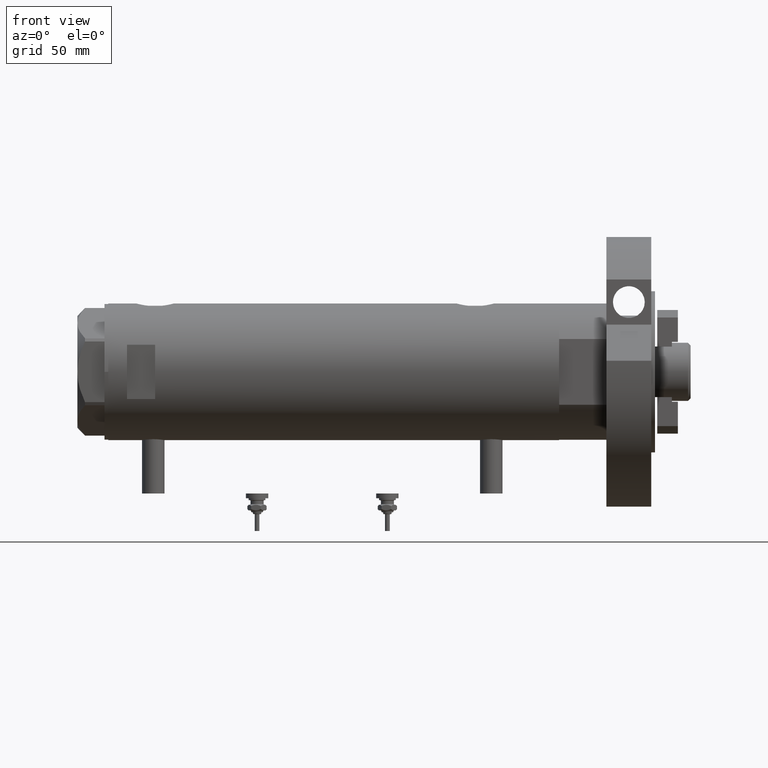
[diagram: clean part render]
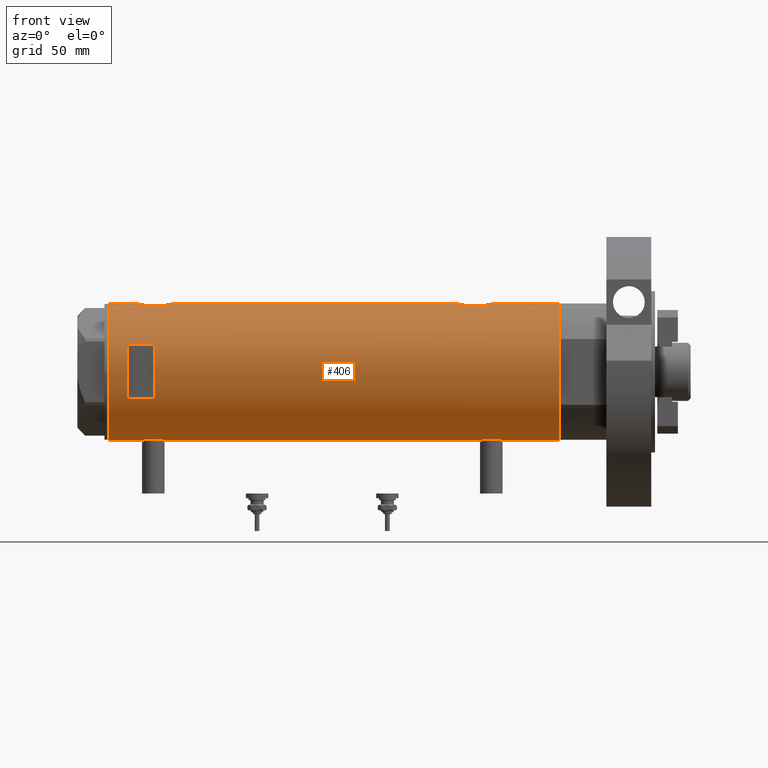
[diagram: same view with one face highlighted and labeled with its STEP entity id]
A machine part, front view. The second image highlights one B-rep face of the part: STEP entity #406.
In plain terms, the highlighted cylindrical surface (partial cylindrical patch) has radius 36.5 mm, axis along (-1, -0, 0).
Its self-contained STEP definition (entity closure, byte-faithful):
#42 = CARTESIAN_POINT ( 'NONE',  ( 14.49137674618942739, -33.50000000000000000, 95.40000000000000568 ) ) ;
#64 = EDGE_CURVE ( 'NONE', #934, #6908, #1511, .T. ) ;
#100 = CARTESIAN_POINT ( 'NONE',  ( 35.93373217836897737, -6.415110096330620237, -67.91295733644906818 ) ) ;
#111 = CARTESIAN_POINT ( 'NONE',  ( -36.50000000000000000, 1.603939656238031057E-15, -77.85000000000000853 ) ) ;
#124 = CARTESIAN_POINT ( 'NONE',  ( -36.16096637594732499, -4.968588355849258953, 92.58665507182242038 ) ) ;
#139 = ORIENTED_EDGE ( 'NONE', *, *, #6978, .F. ) ;
#144 = CARTESIAN_POINT ( 'NONE',  ( 36.00092304812866217, -6.029438422680412302, 103.3930815557365008 ) ) ;
#147 = CARTESIAN_POINT ( 'NONE',  ( 36.41918031349423757, -2.473644131148923009, -65.89811654536809726 ) ) ;
#168 = CARTESIAN_POINT ( 'NONE',  ( -36.50000000000000000, 4.469960493350315609E-15, 90.15000000000000568 ) ) ;
#218 = EDGE_CURVE ( 'NONE', #5137, #5610, #293, .T. ) ;
#238 = AXIS2_PLACEMENT_3D ( 'NONE', #5027, #5702, #5581 ) ;
#246 = CARTESIAN_POINT ( 'NONE',  ( -36.40915499150419521, -2.580495338846545472, -89.79605013355480025 ) ) ;
#275 = CIRCLE ( 'NONE', #5913, 36.50000000000000000 ) ;
#284 = CARTESIAN_POINT ( 'NONE',  ( -36.36656776002988778, -3.137002187003158582, 101.8213640927363457 ) ) ;
#288 = CARTESIAN_POINT ( 'NONE',  ( -36.36635911126388265, -3.125815113635437292, -89.51605600407906138 ) ) ;
#293 = B_SPLINE_CURVE_WITH_KNOTS ( 'NONE', 3,
 ( #5475, #4172, #1635, #7321, #3459, #840, #4208, #998, #6731, #3574, #382, #7364, #1559, #2860, #4682, #7915, #7237, #1476 ),
 .UNSPECIFIED., .F., .F.,
 ( 4, 2, 2, 2, 2, 2, 2, 2, 4 ),
 ( -0.01189883390545606531, -0.008924125429092034240, -0.008180448310001031675, -0.007436771190910029979, -0.005949416952728023983, -0.004462062714546017987, -0.002974708476364010257, -0.001487354238182005128, 1.734723475976807094E-18 ),
 .UNSPECIFIED. ) ;
#302 = CARTESIAN_POINT ( 'NONE',  ( 36.48960339336947101, -1.002724032967601708, 85.43775134026506635 ) ) ;
#316 = VECTOR ( 'NONE', #3165, 1000.000000000000000 ) ;
#319 = B_SPLINE_CURVE_WITH_KNOTS ( 'NONE', 3,
 ( #3288, #7076, #1308, #3888, #147, #5858, #3929, #6452, #1895, #2069, #3249, #5815, #100, #7198, #5105, #2612, #5186, #769 ),
 .UNSPECIFIED., .F., .F.,
 ( 4, 2, 2, 2, 2, 2, 2, 2, 4 ),
 ( 0.01190956515753145012, 0.01339852714138290227, 0.01488748912523435441, 0.01637645110908580656, 0.01712093210101153090, 0.01786541309293725871, 0.01935437507678870739, 0.02084333706064015260, 0.02382126102834301526 ),
 .UNSPECIFIED. ) ;
#322 = CARTESIAN_POINT ( 'NONE',  ( 35.29999999999999716, -9.282241108697837362, 91.67978495245237980 ) ) ;
#382 = CARTESIAN_POINT ( 'NONE',  ( 36.18850502651835654, -4.779575967213809840, -84.39779152890152147 ) ) ;
#406 = ADVANCED_FACE ( 'NONE', ( #5765, #5220 ), #2561, .T. ) ;
#418 = VERTEX_POINT ( 'NONE', #42 ) ;
#489 = B_SPLINE_CURVE_WITH_KNOTS ( 'NONE', 3,
 ( #5351, #2954, #7918, #4764, #1044, #7997, #3534, #4211, #7406, #3576, #6066, #5393, #4256, #2782, #4802, #302, #6812, #6769 ),
 .UNSPECIFIED., .F., .F.,
 ( 4, 2, 2, 2, 2, 2, 2, 2, 4 ),
 ( -0.01189883390545606531, -0.008924125429092034240, -0.008180448310001031675, -0.007436771190910029979, -0.005949416952728023983, -0.004462062714546017987, -0.002974708476364010257, -0.001487354238182005128, 1.734723475976807094E-18 ),
 .UNSPECIFIED. ) ;
#492 = CARTESIAN_POINT ( 'NONE',  ( -36.50000000000001421, -0.4136690418839317762, -77.85000000000002274 ) ) ;
#529 = EDGE_LOOP ( 'NONE', ( #3475, #2744, #6774, #1427, #5632, #742, #887, #3675, #1001, #2550, #3901, #4470, #554, #3803, #2032, #139 ) ) ;
#538 = CARTESIAN_POINT ( 'NONE',  ( -36.49297138689434661, -0.8222528563518530786, -77.89066887946569295 ) ) ;
#541 = DIRECTION ( 'NONE',  ( 0.000000000000000000, 0.000000000000000000, 1.000000000000000000 ) ) ;
#554 = ORIENTED_EDGE ( 'NONE', *, *, #3340, .F. ) ;
#576 = CARTESIAN_POINT ( 'NONE',  ( -36.16125812922425098, -4.962923794285024393, -80.29553914089240152 ) ) ;
#588 = CARTESIAN_POINT ( 'NONE',  ( -36.49315367594273596, -0.8144497809045447845, 90.18960214445247914 ) ) ;
#614 = LINE ( 'NONE', #3178, #3061 ) ;
#631 = CARTESIAN_POINT ( 'NONE',  ( -36.26692673949090562, -4.128477002029503851, 91.69000012567835256 ) ) ;
#633 = CARTESIAN_POINT ( 'NONE',  ( -36.50000000000000000, 4.469960493350315609E-15, -90.35000000000000853 ) ) ;
#670 = EDGE_CURVE ( 'NONE', #5821, #5610, #8108, .T. ) ;
#742 = ORIENTED_EDGE ( 'NONE', *, *, #6025, .F. ) ;
#744 = ORIENTED_EDGE ( 'NONE', *, *, #6786, .F. ) ;
#769 = CARTESIAN_POINT ( 'NONE',  ( 35.29999999999999716, -9.282241108697837362, -71.87978495245236843 ) ) ;
#840 = CARTESIAN_POINT ( 'NONE',  ( 35.79656810172926384, -7.133411935499478496, -82.61254878557676307 ) ) ;
#863 = CARTESIAN_POINT ( 'NONE',  ( -36.06543684817881257, -5.617774235967367247, 99.16954447971704667 ) ) ;
#870 = CARTESIAN_POINT ( 'NONE',  ( 0.000000000000000000, 0.000000000000000000, 110.3999999999999915 ) ) ;
#887 = ORIENTED_EDGE ( 'NONE', *, *, #7047, .T. ) ;
#900 = DIRECTION ( 'NONE',  ( 0.000000000000000000, 0.000000000000000000, 1.000000000000000000 ) ) ;
#907 = CARTESIAN_POINT ( 'NONE',  ( -36.35061318816141096, -3.303361544904982239, -89.40964041943020391 ) ) ;
#934 = VERTEX_POINT ( 'NONE', #3547 ) ;
#954 = CARTESIAN_POINT ( 'NONE',  ( -14.49137674618942739, -33.50000000000000000, 95.40000000000000568 ) ) ;
#998 = CARTESIAN_POINT ( 'NONE',  ( 35.93363298843768661, -6.415574104180976178, -83.28651472888894602 ) ) ;
#1001 = ORIENTED_EDGE ( 'NONE', *, *, #4521, .T. ) ;
#1006 = CARTESIAN_POINT ( 'NONE',  ( 0.000000000000000000, 0.000000000000000000, -120.4000000000000057 ) ) ;
#1027 = EDGE_CURVE ( 'NONE', #5137, #8268, #3839, .T. ) ;
#1044 = CARTESIAN_POINT ( 'NONE',  ( 35.72742963626381396, -7.471989379615407323, 88.74937739587225849 ) ) ;
#1110 = CARTESIAN_POINT ( 'NONE',  ( -35.96087392089862789, -6.250243747806517369, -83.69082509223819955 ) ) ;
#1137 = CARTESIAN_POINT ( 'NONE',  ( -36.50000000000000000, 4.469960816887838430E-15, -120.4000000000000057 ) ) ;
#1154 = CARTESIAN_POINT ( 'NONE',  ( -36.01639592019625979, -5.922235714778421034, -82.09203197573087607 ) ) ;
#1168 = CARTESIAN_POINT ( 'NONE',  ( -35.98821803976956346, -6.090959022952117330, 97.81573883149417270 ) ) ;
#1193 = CARTESIAN_POINT ( 'NONE',  ( 36.50000000000000000, 0.000000000000000000, -85.59999999999999432 ) ) ;
#1262 = CARTESIAN_POINT ( 'NONE',  ( 35.39807338191549491, -8.909271871950329214, 100.0508038273278544 ) ) ;
#1308 = CARTESIAN_POINT ( 'NONE',  ( 36.48988302519020266, -0.9927202255321166957, -65.63673010588698276 ) ) ;
#1371 = EDGE_CURVE ( 'NONE', #5407, #6496, #489, .T. ) ;
#1373 = DIRECTION ( 'NONE',  ( 1.000000000000000000, 0.000000000000000000, 0.000000000000000000 ) ) ;
#1387 = CARTESIAN_POINT ( 'NONE',  ( 36.50000000000000000, 4.344614706140975428E-19, 105.4000000000000057 ) ) ;
#1412 = CARTESIAN_POINT ( 'NONE',  ( -35.98855750525641639, -6.088954600884530777, 94.97569773849834007 ) ) ;
#1427 = ORIENTED_EDGE ( 'NONE', *, *, #218, .F. ) ;
#1459 = CARTESIAN_POINT ( 'NONE',  ( -36.44621655743049615, -2.016281777336074832, 90.47017023300885796 ) ) ;
#1476 = CARTESIAN_POINT ( 'NONE',  ( 36.50000000000000000, 0.000000000000000000, -85.59999999999999432 ) ) ;
#1511 = B_SPLINE_CURVE_WITH_KNOTS ( 'NONE', 3,
 ( #1387, #7115, #2652, #7874, #7700, #4008, #5899, #5811, #5775, #7022, #2609, #144, #7156, #7746, #3966, #7831, #1262, #5269 ),
 .UNSPECIFIED., .F., .F.,
 ( 4, 2, 2, 2, 2, 2, 2, 2, 4 ),
 ( 0.01190956515753145012, 0.01339852714138290227, 0.01488748912523435441, 0.01637645110908580656, 0.01712093210101153090, 0.01786541309293725871, 0.01935437507678870739, 0.02084333706064015260, 0.02382126102834301526 ),
 .UNSPECIFIED. ) ;
#1522 = VECTOR ( 'NONE', #6640, 1000.000000000000000 ) ;
#1550 = VECTOR ( 'NONE', #4292, 1000.000000000000000 ) ;
#1559 = CARTESIAN_POINT ( 'NONE',  ( 36.34184199234172041, -3.427106516421255744, -85.00740913680034794 ) ) ;
#1560 = CARTESIAN_POINT ( 'NONE',  ( 35.29999999999999716, -9.282241108697837362, -79.32021504754763441 ) ) ;
#1595 = VERTEX_POINT ( 'NONE', #633 ) ;
#1623 = CARTESIAN_POINT ( 'NONE',  ( 35.29999999999999716, -9.282241108697837362, 99.12021504754764578 ) ) ;
#1635 = CARTESIAN_POINT ( 'NONE',  ( 35.52320828895289395, -8.411622242316134646, -81.09772865944610487 ) ) ;
#1656 = CARTESIAN_POINT ( 'NONE',  ( -36.09514898390870030, -5.426114745500164815, 99.52838652946141451 ) ) ;
#1706 = CARTESIAN_POINT ( 'NONE',  ( -36.49315367594273596, -0.8144497809045447845, -90.31039785554752086 ) ) ;
#1725 = DIRECTION ( 'NONE',  ( 0.000000000000000000, 0.000000000000000000, 1.000000000000000000 ) ) ;
#1745 = EDGE_CURVE ( 'NONE', #934, #5436, #4081, .T. ) ;
#1747 = DIRECTION ( 'NONE',  ( 1.776356839400250465E-15, 1.000000000000000000, 4.562560375171875891E-15 ) ) ;
#1748 = CARTESIAN_POINT ( 'NONE',  ( -36.43335814606993495, -2.212659578761325463, -78.25123600830491455 ) ) ;
#1763 = VERTEX_POINT ( 'NONE', #2224 ) ;
#1781 = CARTESIAN_POINT ( 'NONE',  ( -35.96816095843705341, -6.208699946936198977, -84.92496377127787355 ) ) ;
#1824 = CARTESIAN_POINT ( 'NONE',  ( -36.19599073318030236, -4.702920041824403263, -79.97846168323422944 ) ) ;
#1865 = LINE ( 'NONE', #3596, #8285 ) ;
#1895 = CARTESIAN_POINT ( 'NONE',  ( 36.18674680775578167, -4.776679548204626258, -66.81107683068754000 ) ) ;
#1909 = CARTESIAN_POINT ( 'NONE',  ( -35.96095902952617251, -6.249754054240900913, -84.51658765420468455 ) ) ;
#2032 = ORIENTED_EDGE ( 'NONE', *, *, #4258, .F. ) ;
#2045 = CARTESIAN_POINT ( 'NONE',  ( -36.09582946723050867, -5.421573071064194060, 93.26391721629518372 ) ) ;
#2069 = CARTESIAN_POINT ( 'NONE',  ( 36.12724769814495573, -5.207618053557754756, -67.05935879511537223 ) ) ;
#2087 = VERTEX_POINT ( 'NONE', #2590 ) ;
#2090 = CARTESIAN_POINT ( 'NONE',  ( -36.01675918113430441, -5.920026275461277798, 94.38560443482110429 ) ) ;
#2224 = CARTESIAN_POINT ( 'NONE',  ( 36.50000000000000000, 4.344614706140975428E-19, -65.60000000000000853 ) ) ;
#2250 = CARTESIAN_POINT ( 'NONE',  ( -36.49297138689434661, -0.8222528563518530786, 102.6093311205343923 ) ) ;
#2278 = LINE ( 'NONE', #1137, #3473 ) ;
#2317 = CARTESIAN_POINT ( 'NONE',  ( -36.50000000000000000, 4.469960816887838430E-15, -120.4000000000000057 ) ) ;
#2330 = CARTESIAN_POINT ( 'NONE',  ( -36.14410773716529235, -5.085921866747754372, 100.0383587842047461 ) ) ;
#2335 = CARTESIAN_POINT ( 'NONE',  ( -36.46614432713124643, -1.622933015999963313, -90.14966597386847980 ) ) ;
#2380 = CARTESIAN_POINT ( 'NONE',  ( -36.06605150775667568, -5.613853192123348101, -86.87765688272544651 ) ) ;
#2388 = AXIS2_PLACEMENT_3D ( 'NONE', #1006, #2959, #6159 ) ;
#2424 = CARTESIAN_POINT ( 'NONE',  ( -36.47262891311153510, -1.427622242603855396, -78.01175370788301677 ) ) ;
#2460 = CARTESIAN_POINT ( 'NONE',  ( -36.14410773716529235, -5.085921866747754372, -80.46164121579529649 ) ) ;
#2524 = CARTESIAN_POINT ( 'NONE',  ( -36.46614432713124643, -1.622933015999963313, 90.35033402613153442 ) ) ;
#2550 = ORIENTED_EDGE ( 'NONE', *, *, #64, .F. ) ;
#2561 = CYLINDRICAL_SURFACE ( 'NONE', #6760, 36.50000000000000000 ) ;
#2562 = EDGE_CURVE ( 'NONE', #6447, #418, #7180, .T. ) ;
#2590 = CARTESIAN_POINT ( 'NONE',  ( -36.50000000000000000, 1.603939656238031057E-15, 102.6500000000000199 ) ) ;
#2609 = CARTESIAN_POINT ( 'NONE',  ( 36.09633718678917802, -5.417295330713078449, 103.8091486734521283 ) ) ;
#2612 = CARTESIAN_POINT ( 'NONE',  ( 35.52323553852023963, -8.411295122831250026, -70.10247607048910368 ) ) ;
#2652 = CARTESIAN_POINT ( 'NONE',  ( 36.48988302519020266, -0.9927202255321166957, 105.3632698941130172 ) ) ;
#2731 = CARTESIAN_POINT ( 'NONE',  ( -14.49137674618942739, -33.50000000000000000, -120.4000000000000057 ) ) ;
#2744 = ORIENTED_EDGE ( 'NONE', *, *, #7397, .T. ) ;
#2772 = VECTOR ( 'NONE', #5958, 1000.000000000000000 ) ;
#2782 = CARTESIAN_POINT ( 'NONE',  ( 36.41856252531823657, -2.482507212621166470, 85.70043487153495221 ) ) ;
#2806 = CARTESIAN_POINT ( 'NONE',  ( -36.47262891311153510, -1.427622242603855396, 102.4882462921170259 ) ) ;
#2812 = CARTESIAN_POINT ( 'NONE',  ( -36.19666146462960654, -4.704890678739094945, -88.23429859510781625 ) ) ;
#2846 = CARTESIAN_POINT ( 'NONE',  ( -36.26616882068471170, -4.135065845178865551, 101.1041505594009635 ) ) ;
#2850 = CARTESIAN_POINT ( 'NONE',  ( -36.16096637594732499, -4.968588355849258953, -87.91334492817760804 ) ) ;
#2860 = CARTESIAN_POINT ( 'NONE',  ( 36.41856252531823657, -2.482507212621166470, -85.29956512846501937 ) ) ;
#2884 = LINE ( 'NONE', #6130, #3716 ) ;
#2916 = VERTEX_POINT ( 'NONE', #6041 ) ;
#2921 = ORIENTED_EDGE ( 'NONE', *, *, #2562, .F. ) ;
#2928 = CARTESIAN_POINT ( 'NONE',  ( 14.49137674618942739, -33.50000000000000000, -120.4000000000000057 ) ) ;
#2931 = CARTESIAN_POINT ( 'NONE',  ( -36.16125812922425098, -4.962923794285024393, 100.2044608591076127 ) ) ;
#2935 = VECTOR ( 'NONE', #4638, 1000.000000000000000 ) ;
#2945 = CARTESIAN_POINT ( 'NONE',  ( 36.50000000000000000, 0.000000000000000000, -120.4000000000000057 ) ) ;
#2954 = CARTESIAN_POINT ( 'NONE',  ( 35.39794035667548400, -8.909777761736840773, 90.75045840910549089 ) ) ;
#2959 = DIRECTION ( 'NONE',  ( 0.000000000000000000, 0.000000000000000000, 1.000000000000000000 ) ) ;
#2973 = DIRECTION ( 'NONE',  ( -0.000000000000000000, -4.625929269271492422E-15, 1.000000000000000000 ) ) ;
#2975 = CARTESIAN_POINT ( 'NONE',  ( -36.50000000000000000, 4.469960493350315609E-15, -90.35000000000000853 ) ) ;
#3012 = CARTESIAN_POINT ( 'NONE',  ( -36.06543684817881257, -5.617774235967367247, -81.33045552028302438 ) ) ;
#3061 = VECTOR ( 'NONE', #5748, 1000.000000000000000 ) ;
#3120 = CARTESIAN_POINT ( 'NONE',  ( 35.29999999999999716, -9.282241108697837362, -120.4000000000000057 ) ) ;
#3134 = CARTESIAN_POINT ( 'NONE',  ( -36.26616882068471170, -4.135065845178865551, -79.39584944059912175 ) ) ;
#3165 = DIRECTION ( 'NONE',  ( 0.000000000000000000, 0.000000000000000000, 1.000000000000000000 ) ) ;
#3178 = CARTESIAN_POINT ( 'NONE',  ( 36.50000000000000000, 0.000000000000000000, -120.4000000000000057 ) ) ;
#3198 = CARTESIAN_POINT ( 'NONE',  ( -36.02823773219768810, -5.849994928883552880, 94.19044898514356134 ) ) ;
#3249 = CARTESIAN_POINT ( 'NONE',  ( 36.09633718678917802, -5.417295330713078449, -67.19085132654788595 ) ) ;
#3288 = CARTESIAN_POINT ( 'NONE',  ( 36.50000000000000000, 4.344614706140975428E-19, -65.60000000000000853 ) ) ;
#3321 = DIRECTION ( 'NONE',  ( 1.000000000000000000, 0.000000000000000000, 0.000000000000000000 ) ) ;
#3340 = EDGE_CURVE ( 'NONE', #2087, #7613, #7883, .T. ) ;
#3444 = CARTESIAN_POINT ( 'NONE',  ( -36.30176144752229561, -3.814344296723636951, -89.06801701950256245 ) ) ;
#3459 = CARTESIAN_POINT ( 'NONE',  ( 35.72742963626381396, -7.471989379615407323, -82.25062260412775572 ) ) ;
#3473 = VECTOR ( 'NONE', #1725, 1000.000000000000000 ) ;
#3475 = ORIENTED_EDGE ( 'NONE', *, *, #7250, .F. ) ;
#3516 = CARTESIAN_POINT ( 'NONE',  ( -36.19599073318030236, -4.702920041824403263, 100.5215383167658274 ) ) ;
#3534 = CARTESIAN_POINT ( 'NONE',  ( 35.83108131285856501, -6.958268797611358636, 88.21369216627178389 ) ) ;
#3547 = CARTESIAN_POINT ( 'NONE',  ( 36.50000000000000000, 4.344614706140975428E-19, 105.4000000000000057 ) ) ;
#3574 = CARTESIAN_POINT ( 'NONE',  ( 36.12792682573228831, -5.214735277442335004, -84.14693117988699100 ) ) ;
#3576 = CARTESIAN_POINT ( 'NONE',  ( 36.12792682573228831, -5.214735277442335004, 86.85306882011300900 ) ) ;
#3585 = VERTEX_POINT ( 'NONE', #7559 ) ;
#3596 = CARTESIAN_POINT ( 'NONE',  ( 35.29999999999999716, -9.282241108697837362, -120.4000000000000057 ) ) ;
#3675 = ORIENTED_EDGE ( 'NONE', *, *, #1371, .F. ) ;
#3716 = VECTOR ( 'NONE', #900, 1000.000000000000000 ) ;
#3732 = CARTESIAN_POINT ( 'NONE',  ( 0.000000000000000000, 0.000000000000000000, 95.40000000000014779 ) ) ;
#3733 = CARTESIAN_POINT ( 'NONE',  ( -36.09514898390870030, -5.426114745500164815, -80.97161347053862812 ) ) ;
#3745 = CARTESIAN_POINT ( 'NONE',  ( -35.99659093586380010, -6.041447834568799635, 98.01422412014827046 ) ) ;
#3803 = ORIENTED_EDGE ( 'NONE', *, *, #5390, .F. ) ;
#3812 = CARTESIAN_POINT ( 'NONE',  ( -35.99659093586380010, -6.041447834568799635, -82.48577587985177217 ) ) ;
#3828 = CARTESIAN_POINT ( 'NONE',  ( -36.40915499150419521, -2.580495338846545472, 90.70394986644524238 ) ) ;
#3839 = LINE ( 'NONE', #3120, #316 ) ;
#3868 = CIRCLE ( 'NONE', #238, 36.50000000000000000 ) ;
#3888 = CARTESIAN_POINT ( 'NONE',  ( 36.44931971524465553, -1.985988150549293341, -65.78633139468234958 ) ) ;
#3901 = ORIENTED_EDGE ( 'NONE', *, *, #1745, .T. ) ;
#3929 = CARTESIAN_POINT ( 'NONE',  ( 36.29582892817134621, -3.881628320031159873, -66.37065565465010764 ) ) ;
#3953 = DIRECTION ( 'NONE',  ( 0.000000000000000000, 0.000000000000000000, 1.000000000000000000 ) ) ;
#3966 = CARTESIAN_POINT ( 'NONE',  ( 35.72583162417570435, -7.484316398521980496, 102.0504264371950143 ) ) ;
#3989 = CARTESIAN_POINT ( 'NONE',  ( -35.96816095843705341, -6.208699946936198977, 95.57503622872209803 ) ) ;
#4008 = CARTESIAN_POINT ( 'NONE',  ( 36.34247810649306132, -3.420510937483959513, 104.8098651840172977 ) ) ;
#4033 = CARTESIAN_POINT ( 'NONE',  ( -35.99695583620881933, -6.039273428153905776, 94.77775555012246400 ) ) ;
#4056 = CARTESIAN_POINT ( 'NONE',  ( -36.50000000000000000, 4.469960816887838430E-15, -120.4000000000000057 ) ) ;
#4070 = CARTESIAN_POINT ( 'NONE',  ( -36.46417279006304568, -1.628689148039109247, 102.4375393869382123 ) ) ;
#4081 = LINE ( 'NONE', #2945, #1522 ) ;
#4172 = CARTESIAN_POINT ( 'NONE',  ( 35.39794035667548400, -8.909777761736840773, -80.24954159089453753 ) ) ;
#4194 = CARTESIAN_POINT ( 'NONE',  ( -36.43335814606993495, -2.212659578761325463, 102.2487639916951281 ) ) ;
#4208 = CARTESIAN_POINT ( 'NONE',  ( 35.83108131285856501, -6.958268797611358636, -82.78630783372825874 ) ) ;
#4211 = CARTESIAN_POINT ( 'NONE',  ( 35.93363298843768661, -6.415574104180976178, 87.71348527111109661 ) ) ;
#4250 = CARTESIAN_POINT ( 'NONE',  ( 36.50000000000000000, 0.000000000000000000, 85.40000000000001990 ) ) ;
#4256 = CARTESIAN_POINT ( 'NONE',  ( 36.34184199234172041, -3.427106516421255744, 85.99259086319968048 ) ) ;
#4258 = EDGE_CURVE ( 'NONE', #4598, #3585, #2884, .T. ) ;
#4271 = EDGE_CURVE ( 'NONE', #418, #2916, #6623, .T. ) ;
#4283 = CARTESIAN_POINT ( 'NONE',  ( -36.39558535855674393, -2.764807686268001774, -89.70894118545612628 ) ) ;
#4292 = DIRECTION ( 'NONE',  ( 0.000000000000000000, 0.000000000000000000, 1.000000000000000000 ) ) ;
#4329 = CARTESIAN_POINT ( 'NONE',  ( 36.50000000000000000, 0.000000000000000000, -120.4000000000000057 ) ) ;
#4452 = CARTESIAN_POINT ( 'NONE',  ( -36.02823773219768810, -5.849994928883552880, -86.30955101485642444 ) ) ;
#4463 = CARTESIAN_POINT ( 'NONE',  ( -36.39558535855674393, -2.764807686268001774, 90.79105881454391636 ) ) ;
#4470 = ORIENTED_EDGE ( 'NONE', *, *, #5559, .F. ) ;
#4490 = CARTESIAN_POINT ( 'NONE',  ( -36.39621039793029666, -2.776267550998806843, -78.48569246893224260 ) ) ;
#4521 = EDGE_CURVE ( 'NONE', #5407, #6908, #1865, .T. ) ;
#4552 = CARTESIAN_POINT ( 'NONE',  ( 0.000000000000000000, 0.000000000000000000, -120.4000000000000057 ) ) ;
#4570 = DIRECTION ( 'NONE',  ( 0.000000000000000000, 0.000000000000000000, 1.000000000000000000 ) ) ;
#4598 = VERTEX_POINT ( 'NONE', #111 ) ;
#4638 = DIRECTION ( 'NONE',  ( -0.000000000000000000, -0.000000000000000000, -1.000000000000000000 ) ) ;
#4682 = CARTESIAN_POINT ( 'NONE',  ( 36.44881677724178104, -1.995085670027227032, -85.41180345369463112 ) ) ;
#4744 = CARTESIAN_POINT ( 'NONE',  ( -36.44454782745417276, -2.020757099930494682, 102.3178586442099913 ) ) ;
#4748 = CARTESIAN_POINT ( 'NONE',  ( -36.26692673949090562, -4.128477002029503851, -88.80999987432169007 ) ) ;
#4764 = CARTESIAN_POINT ( 'NONE',  ( 35.69273631926343882, -7.635692914629149008, 88.93799804348513760 ) ) ;
#4802 = CARTESIAN_POINT ( 'NONE',  ( 36.44881677724178104, -1.995085670027227032, 85.58819654630534046 ) ) ;
#4818 = CARTESIAN_POINT ( 'NONE',  ( -36.21356728133255842, -4.566014386638764577, 100.6726266076474730 ) ) ;
#4864 = CARTESIAN_POINT ( 'NONE',  ( 36.50000000000000000, 0.000000000000000000, 120.4000000000000057 ) ) ;
#4891 = ORIENTED_EDGE ( 'NONE', *, *, #4271, .F. ) ;
#4910 = CARTESIAN_POINT ( 'NONE',  ( -36.44621655743049615, -2.016281777336074832, -90.02982976699115625 ) ) ;
#4912 = CARTESIAN_POINT ( 'NONE',  ( 35.29999999999999716, -9.282241108697837362, -71.87978495245236843 ) ) ;
#4958 = CARTESIAN_POINT ( 'NONE',  ( -36.09582946723050867, -5.421573071064194060, -87.23608278370488733 ) ) ;
#5019 = CARTESIAN_POINT ( 'NONE',  ( 36.50000000000000000, 0.000000000000000000, -120.4000000000000057 ) ) ;
#5027 = CARTESIAN_POINT ( 'NONE',  ( 0.000000000000000000, 0.000000000000000000, 120.4000000000000057 ) ) ;
#5032 = CARTESIAN_POINT ( 'NONE',  ( -35.99695583620881933, -6.039273428153905776, -85.72224444987756442 ) ) ;
#5105 = CARTESIAN_POINT ( 'NONE',  ( 35.72583162417570435, -7.484316398521980496, -68.94957356280497152 ) ) ;
#5119 = CARTESIAN_POINT ( 'NONE',  ( -36.21356728133255842, -4.566014386638764577, -79.82737339235254126 ) ) ;
#5137 = VERTEX_POINT ( 'NONE', #1560 ) ;
#5186 = CARTESIAN_POINT ( 'NONE',  ( 35.39807338191549491, -8.909271871950329214, -70.94919617267213141 ) ) ;
#5220 = FACE_BOUND ( 'NONE', #8005, .T. ) ;
#5269 = CARTESIAN_POINT ( 'NONE',  ( 35.29999999999999716, -9.282241108697837362, 99.12021504754764578 ) ) ;
#5288 = CARTESIAN_POINT ( 'NONE',  ( -36.19666146462960654, -4.704890678739094945, 92.26570140489218375 ) ) ;
#5351 = CARTESIAN_POINT ( 'NONE',  ( 35.29999999999999716, -9.282241108697837362, 91.67978495245237980 ) ) ;
#5373 = CARTESIAN_POINT ( 'NONE',  ( -36.50000000000000000, 1.603939656238031057E-15, 102.6500000000000199 ) ) ;
#5390 = EDGE_CURVE ( 'NONE', #3585, #2087, #8266, .T. ) ;
#5393 = CARTESIAN_POINT ( 'NONE',  ( 36.29527920868844859, -3.886508670267145416, 86.17283724169139703 ) ) ;
#5407 = VERTEX_POINT ( 'NONE', #322 ) ;
#5436 = VERTEX_POINT ( 'NONE', #4864 ) ;
#5475 = CARTESIAN_POINT ( 'NONE',  ( 35.29999999999999716, -9.282241108697837362, -79.32021504754763441 ) ) ;
#5499 = CARTESIAN_POINT ( 'NONE',  ( -36.39621039793029666, -2.776267550998806843, 102.0143075310678000 ) ) ;
#5559 = EDGE_CURVE ( 'NONE', #7613, #5436, #3868, .T. ) ;
#5581 = DIRECTION ( 'NONE',  ( 1.000000000000000000, 0.000000000000000000, 0.000000000000000000 ) ) ;
#5610 = VERTEX_POINT ( 'NONE', #1193 ) ;
#5632 = ORIENTED_EDGE ( 'NONE', *, *, #1027, .T. ) ;
#5665 = VERTEX_POINT ( 'NONE', #6463 ) ;
#5669 = CARTESIAN_POINT ( 'NONE',  ( -35.98855750525641639, -6.088954600884530777, -85.52430226150170256 ) ) ;
#5702 = DIRECTION ( 'NONE',  ( 0.000000000000000000, 0.000000000000000000, 1.000000000000000000 ) ) ;
#5709 = CARTESIAN_POINT ( 'NONE',  ( -36.46417279006304568, -1.628689148039109247, -78.06246061306184458 ) ) ;
#5724 = CARTESIAN_POINT ( 'NONE',  ( -36.30176144752229561, -3.814344296723636951, 91.43198298049746597 ) ) ;
#5748 = DIRECTION ( 'NONE',  ( 0.000000000000000000, 0.000000000000000000, 1.000000000000000000 ) ) ;
#5753 = CIRCLE ( 'NONE', #2388, 36.50000000000000000 ) ;
#5765 = FACE_OUTER_BOUND ( 'NONE', #529, .T. ) ;
#5775 = CARTESIAN_POINT ( 'NONE',  ( 36.18674680775578167, -4.776679548204626258, 104.1889231693125026 ) ) ;
#5811 = CARTESIAN_POINT ( 'NONE',  ( 36.21540437201188922, -4.554727782332258279, 104.3059762908862638 ) ) ;
#5815 = CARTESIAN_POINT ( 'NONE',  ( 36.00092304812866217, -6.029438422680412302, -67.60691844426347075 ) ) ;
#5821 = VERTEX_POINT ( 'NONE', #5019 ) ;
#5858 = CARTESIAN_POINT ( 'NONE',  ( 36.34247810649306132, -3.420510937483959513, -66.19013481598274495 ) ) ;
#5899 = CARTESIAN_POINT ( 'NONE',  ( 36.29582892817134621, -3.881628320031159873, 104.6293443453499066 ) ) ;
#5913 = AXIS2_PLACEMENT_3D ( 'NONE', #870, #7861, #1373 ) ;
#5958 = DIRECTION ( 'NONE',  ( 0.000000000000000000, 0.000000000000000000, 1.000000000000000000 ) ) ;
#6025 = EDGE_CURVE ( 'NONE', #1763, #8268, #319, .T. ) ;
#6041 = CARTESIAN_POINT ( 'NONE',  ( 14.49137674618942739, -33.50000000000000000, 110.3999999999999915 ) ) ;
#6047 = CARTESIAN_POINT ( 'NONE',  ( -36.30107494031872051, -3.820993528321233068, 101.3630615353631157 ) ) ;
#6066 = CARTESIAN_POINT ( 'NONE',  ( 36.18850502651835654, -4.779575967213809840, 86.60220847109846432 ) ) ;
#6130 = CARTESIAN_POINT ( 'NONE',  ( -36.50000000000000000, 4.469960816887838430E-15, -120.4000000000000057 ) ) ;
#6159 = DIRECTION ( 'NONE',  ( 1.000000000000000000, 0.000000000000000000, 0.000000000000000000 ) ) ;
#6260 = CARTESIAN_POINT ( 'NONE',  ( -36.30107494031872051, -3.820993528321233068, -79.13693846463692694 ) ) ;
#6305 = CARTESIAN_POINT ( 'NONE',  ( -36.36656776002988778, -3.137002187003158582, -78.67863590726369694 ) ) ;
#6318 = CARTESIAN_POINT ( 'NONE',  ( -36.01639592019625979, -5.922235714778421034, 98.40796802426915235 ) ) ;
#6348 = CARTESIAN_POINT ( 'NONE',  ( -35.98821803976956346, -6.090959022952117330, -82.68426116850582730 ) ) ;
#6385 = EDGE_CURVE ( 'NONE', #5665, #6447, #7827, .T. ) ;
#6401 = CARTESIAN_POINT ( 'NONE',  ( -36.35061318816141096, -3.303361544904982239, 91.09035958056982452 ) ) ;
#6447 = VERTEX_POINT ( 'NONE', #954 ) ;
#6452 = CARTESIAN_POINT ( 'NONE',  ( 36.21540437201188922, -4.554727782332258279, -66.69402370911377886 ) ) ;
#6463 = CARTESIAN_POINT ( 'NONE',  ( -14.49137674618942739, -33.50000000000000000, 110.3999999999999915 ) ) ;
#6496 = VERTEX_POINT ( 'NONE', #4250 ) ;
#6549 = CARTESIAN_POINT ( 'NONE',  ( -35.96087392089862789, -6.250243747806517369, 96.80917490776182888 ) ) ;
#6591 = CARTESIAN_POINT ( 'NONE',  ( -35.96794010939611752, -6.209972807992079069, 97.21555548991356943 ) ) ;
#6623 = LINE ( 'NONE', #2928, #2772 ) ;
#6626 = CARTESIAN_POINT ( 'NONE',  ( -36.02782481185206365, -5.852531070448506512, 98.60277008952193967 ) ) ;
#6640 = DIRECTION ( 'NONE',  ( 0.000000000000000000, 0.000000000000000000, 1.000000000000000000 ) ) ;
#6731 = CARTESIAN_POINT ( 'NONE',  ( 36.00068527486601511, -6.030855700422090848, -83.59201327127354375 ) ) ;
#6760 = AXIS2_PLACEMENT_3D ( 'NONE', #4552, #3953, #3321 ) ;
#6769 = CARTESIAN_POINT ( 'NONE',  ( 36.50000000000000000, 0.000000000000000000, 85.40000000000001990 ) ) ;
#6774 = ORIENTED_EDGE ( 'NONE', *, *, #670, .T. ) ;
#6786 = EDGE_CURVE ( 'NONE', #2916, #5665, #275, .T. ) ;
#6812 = CARTESIAN_POINT ( 'NONE',  ( 36.50000000000000711, -0.5031001875915692700, 85.40000000000004832 ) ) ;
#6876 = CARTESIAN_POINT ( 'NONE',  ( -36.01675918113430441, -5.920026275461277798, -86.11439556517892413 ) ) ;
#6908 = VERTEX_POINT ( 'NONE', #1623 ) ;
#6943 = CARTESIAN_POINT ( 'NONE',  ( -36.50000000000000000, 4.469960816887838430E-15, 120.4000000000000057 ) ) ;
#6978 = EDGE_CURVE ( 'NONE', #1595, #4598, #7847, .T. ) ;
#6999 = CARTESIAN_POINT ( 'NONE',  ( -36.44454782745417276, -2.020757099930494682, -78.18214135579003710 ) ) ;
#7022 = CARTESIAN_POINT ( 'NONE',  ( 36.12724769814495573, -5.207618053557754756, 103.9406412048846704 ) ) ;
#7047 = EDGE_CURVE ( 'NONE', #1763, #6496, #614, .T. ) ;
#7076 = CARTESIAN_POINT ( 'NONE',  ( 36.50000000000000711, -0.4962708696651116913, -65.60000000000000853 ) ) ;
#7115 = CARTESIAN_POINT ( 'NONE',  ( 36.50000000000000711, -0.4962708696651116913, 105.4000000000000199 ) ) ;
#7156 = CARTESIAN_POINT ( 'NONE',  ( 35.93373217836897737, -6.415110096330620237, 103.0870426635509176 ) ) ;
#7177 = CARTESIAN_POINT ( 'NONE',  ( -36.36635911126388265, -3.125815113635437292, 90.98394399592098125 ) ) ;
#7180 = CIRCLE ( 'NONE', #7990, 36.50000000000000000 ) ;
#7198 = CARTESIAN_POINT ( 'NONE',  ( 35.79638309643555516, -7.141827709208434349, -68.58298073030452713 ) ) ;
#7237 = CARTESIAN_POINT ( 'NONE',  ( 36.50000000000000711, -0.5031001875915692700, -85.59999999999999432 ) ) ;
#7250 = EDGE_CURVE ( 'NONE', #7402, #1595, #2278, .T. ) ;
#7266 = CARTESIAN_POINT ( 'NONE',  ( -36.50000000000001421, -0.4136690418839317762, 102.6500000000000341 ) ) ;
#7321 = CARTESIAN_POINT ( 'NONE',  ( 35.69273631926343882, -7.635692914629149008, -82.06200195651489082 ) ) ;
#7364 = CARTESIAN_POINT ( 'NONE',  ( 36.29527920868844859, -3.886508670267145416, -84.82716275830861719 ) ) ;
#7397 = EDGE_CURVE ( 'NONE', #7402, #5821, #5753, .T. ) ;
#7402 = VERTEX_POINT ( 'NONE', #2317 ) ;
#7406 = CARTESIAN_POINT ( 'NONE',  ( 36.00068527486601511, -6.030855700422090848, 87.40798672872648467 ) ) ;
#7550 = CARTESIAN_POINT ( 'NONE',  ( -36.50000000000000000, 1.603939656238031057E-15, -77.85000000000000853 ) ) ;
#7559 = CARTESIAN_POINT ( 'NONE',  ( -36.50000000000000000, 4.469960493350315609E-15, 90.15000000000000568 ) ) ;
#7570 = VECTOR ( 'NONE', #541, 1000.000000000000000 ) ;
#7613 = VERTEX_POINT ( 'NONE', #6943 ) ;
#7633 = CARTESIAN_POINT ( 'NONE',  ( -35.96794010939611752, -6.209972807992079069, -83.28444451008648741 ) ) ;
#7700 = CARTESIAN_POINT ( 'NONE',  ( 36.41918031349423757, -2.473644131148923009, 105.1018834546319027 ) ) ;
#7746 = CARTESIAN_POINT ( 'NONE',  ( 35.79638309643555516, -7.141827709208434349, 102.4170192696955013 ) ) ;
#7827 = LINE ( 'NONE', #2731, #2935 ) ;
#7831 = CARTESIAN_POINT ( 'NONE',  ( 35.52323553852023963, -8.411295122831250026, 100.8975239295108821 ) ) ;
#7847 = B_SPLINE_CURVE_WITH_KNOTS ( 'NONE', 3,
 ( #2975, #8103, #1706, #2335, #4910, #246, #4283, #288, #907, #3444, #4748, #2812, #2850, #4958, #2380, #4452, #6876, #5032, #5669, #1781, #1909, #1110, #7633, #6348, #3812, #1154, #8192, #3012, #3733, #2460, #576, #1824, #5119, #3134, #6260, #6305, #4490, #1748, #6999, #5709, #2424, #538, #492, #7550 ),
 .UNSPECIFIED., .F., .F.,
 ( 4, 2, 2, 2, 2, 2, 2, 2, 2, 2, 2, 2, 2, 2, 2, 2, 2, 2, 2, 2, 2, 4 ),
 ( 0.01957644481942643136, 0.02079966591703043266, 0.02202288701463443049, 0.02263449756343642941, 0.02324610811223842832, 0.02446932920984242615, 0.02569255030744642398, 0.02691577140505042529, 0.02752738195385242420, 0.02813899250265442659, 0.02936221360025846605, 0.03058543469786250205, 0.03119704524666452178, 0.03180865579546654498, 0.03303187689307057751, 0.03364348744187262152, 0.03425509799067465166, 0.03547831908827869807, 0.03670154018588274447, 0.03731315073468477461, 0.03792476128348679781, 0.03914798238109084422 ),
 .UNSPECIFIED. ) ;
#7855 = CARTESIAN_POINT ( 'NONE',  ( -36.06605150775667568, -5.613853192123348101, 93.62234311727458191 ) ) ;
#7861 = DIRECTION ( 'NONE',  ( -0.000000000000000000, 0.000000000000000000, -1.000000000000000000 ) ) ;
#7874 = CARTESIAN_POINT ( 'NONE',  ( 36.44931971524465553, -1.985988150549293341, 105.2136686053176078 ) ) ;
#7883 = LINE ( 'NONE', #4056, #1550 ) ;
#7896 = CARTESIAN_POINT ( 'NONE',  ( -35.96095902952617251, -6.249754054240900913, 95.98341234579532966 ) ) ;
#7915 = CARTESIAN_POINT ( 'NONE',  ( 36.48960339336947101, -1.002724032967601708, -85.56224865973499050 ) ) ;
#7918 = CARTESIAN_POINT ( 'NONE',  ( 35.52320828895289395, -8.411622242316134646, 89.90227134055388092 ) ) ;
#7990 = AXIS2_PLACEMENT_3D ( 'NONE', #3732, #2973, #1747 ) ;
#7997 = CARTESIAN_POINT ( 'NONE',  ( 35.79656810172926384, -7.133411935499478496, 88.38745121442323693 ) ) ;
#8005 = EDGE_LOOP ( 'NONE', ( #2921, #8154, #744, #4891 ) ) ;
#8103 = CARTESIAN_POINT ( 'NONE',  ( -36.49999999999999289, -0.4082012689449562859, -90.34999999999998010 ) ) ;
#8108 = LINE ( 'NONE', #4329, #7570 ) ;
#8154 = ORIENTED_EDGE ( 'NONE', *, *, #6385, .F. ) ;
#8192 = CARTESIAN_POINT ( 'NONE',  ( -36.02782481185206365, -5.852531070448506512, -81.89722991047811718 ) ) ;
#8266 = B_SPLINE_CURVE_WITH_KNOTS ( 'NONE', 3,
 ( #168, #8292, #588, #2524, #1459, #3828, #4463, #7177, #6401, #5724, #631, #5288, #124, #2045, #7855, #3198, #2090, #4033, #1412, #3989, #7896, #6549, #6591, #1168, #3745, #6318, #6626, #863, #1656, #2330, #2931, #3516, #4818, #2846, #6047, #284, #5499, #4194, #4744, #4070, #2806, #2250, #7266, #5373 ),
 .UNSPECIFIED., .F., .F.,
 ( 4, 2, 2, 2, 2, 2, 2, 2, 2, 2, 2, 2, 2, 2, 2, 2, 2, 2, 2, 2, 2, 4 ),
 ( 0.01957644481942643136, 0.02079966591703043266, 0.02202288701463443049, 0.02263449756343642941, 0.02324610811223842832, 0.02446932920984242615, 0.02569255030744642398, 0.02691577140505042529, 0.02752738195385242420, 0.02813899250265442659, 0.02936221360025846605, 0.03058543469786250205, 0.03119704524666452178, 0.03180865579546654498, 0.03303187689307057751, 0.03364348744187262152, 0.03425509799067465166, 0.03547831908827869807, 0.03670154018588274447, 0.03731315073468477461, 0.03792476128348679781, 0.03914798238109084422 ),
 .UNSPECIFIED. ) ;
#8268 = VERTEX_POINT ( 'NONE', #4912 ) ;
#8285 = VECTOR ( 'NONE', #4570, 1000.000000000000000 ) ;
#8292 = CARTESIAN_POINT ( 'NONE',  ( -36.49999999999999289, -0.4082012689449562859, 90.15000000000001990 ) ) ;